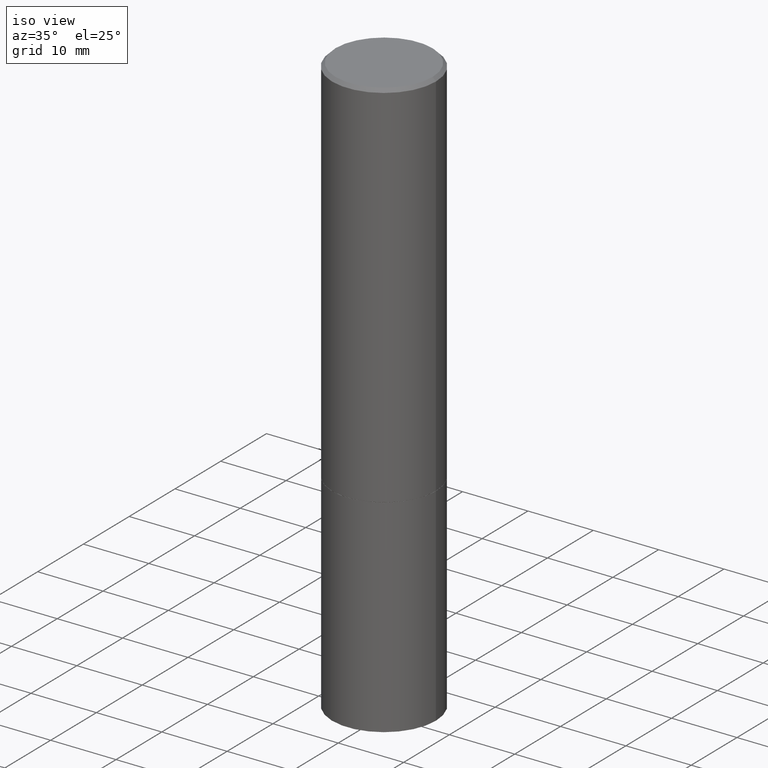
[diagram: clean part render]
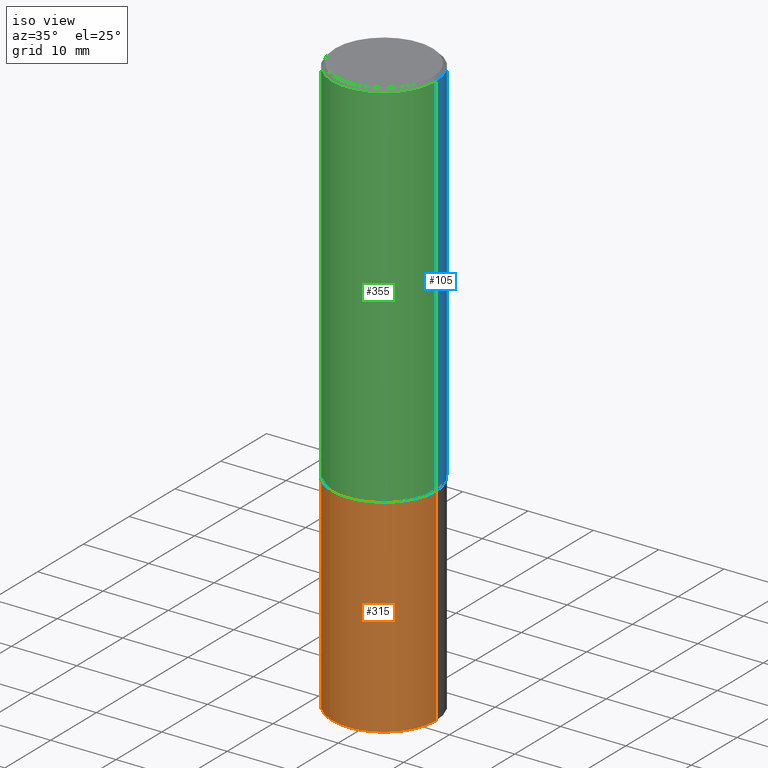
[diagram: same view with three faces highlighted in distinct colors, each labeled with its STEP entity id]
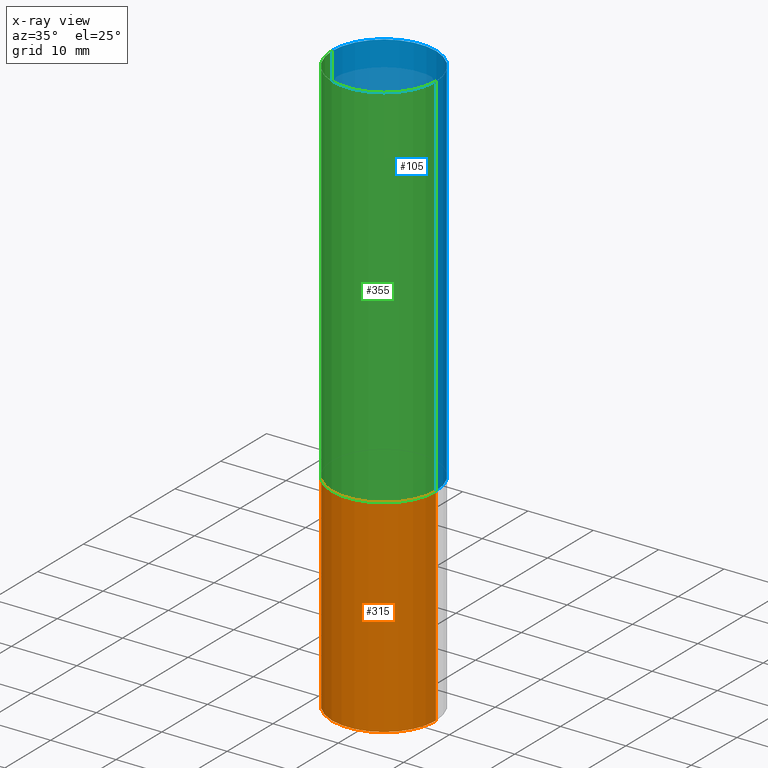
[diagram: x-ray of the same camera — body ghosted, the three highlighted faces saturated]
A machine part, iso view with three faces highlighted in distinct colors.
The next image is the same camera in x-ray (body ghosted, the three faces saturated) — at least one of them is partly hidden behind the body in this view.
Their STEP definitions:

[orange] entity #315 — the highlighted cylindrical surface (partial cylindrical patch) has radius 7.9375 mm, axis along (-0, 0, 1).
#4 = LINE ( 'NONE', #166, #90 ) ;
#12 = DIRECTION ( 'NONE',  ( 1.000000000000000000, -6.982962677686265133E-15, 0.000000000000000000 ) ) ;
#16 = LINE ( 'NONE', #81, #245 ) ;
#23 = DIRECTION ( 'NONE',  ( -2.445468806185136877E-29, 3.491481338843145188E-15, 1.000000000000000000 ) ) ;
#29 = FACE_OUTER_BOUND ( 'NONE', #168, .T. ) ;
#32 = EDGE_CURVE ( 'NONE', #298, #288, #183, .T. ) ;
#35 = CARTESIAN_POINT ( 'NONE',  ( -0.3125000000000000000, -7.817562799923728448E-15, -2.249999999999999556 ) ) ;
#38 = AXIS2_PLACEMENT_3D ( 'NONE', #346, #347, #106 ) ;
#66 = CIRCLE ( 'NONE', #38, 0.3125000000000000000 ) ;
#79 = VERTEX_POINT ( 'NONE', #211 ) ;
#81 = CARTESIAN_POINT ( 'NONE',  ( 0.3125000000000000000, -2.182175836776958347E-15, 1.523805242436230075E-29 ) ) ;
#87 = CARTESIAN_POINT ( 'NONE',  ( -0.3124999999999997224, -1.003800884917405415E-14, -3.500000000000000000 ) ) ;
#90 = VECTOR ( 'NONE', #131, 39.37007874015748143 ) ;
#95 = DIRECTION ( 'NONE',  ( -2.445468806185136597E-29, 3.491481338843145583E-15, 1.000000000000000000 ) ) ;
#106 = DIRECTION ( 'NONE',  ( 1.000000000000000000, -6.982962677686269077E-15, 0.000000000000000000 ) ) ;
#111 = EDGE_CURVE ( 'NONE', #79, #288, #16, .T. ) ;
#119 = CYLINDRICAL_SURFACE ( 'NONE', #187, 0.3125000000000000000 ) ;
#125 = ORIENTED_EDGE ( 'NONE', *, *, #163, .T. ) ;
#131 = DIRECTION ( 'NONE',  ( -2.445468806185136877E-29, 3.491481338843145188E-15, 1.000000000000000000 ) ) ;
#163 = EDGE_CURVE ( 'NONE', #320, #79, #66, .T. ) ;
#166 = CARTESIAN_POINT ( 'NONE',  ( -0.3125000000000000000, 2.220446049250313081E-15, -1.537167215704658232E-29 ) ) ;
#168 = EDGE_LOOP ( 'NONE', ( #370, #125, #235, #304 ) ) ;
#173 = CARTESIAN_POINT ( 'NONE',  ( 5.502304813916556222E-29, -7.855833012397075293E-15, -2.249999999999999556 ) ) ;
#181 = DIRECTION ( 'NONE',  ( -2.445468806185136597E-29, 3.491481338843145583E-15, 1.000000000000000000 ) ) ;
#183 = CIRCLE ( 'NONE', #344, 0.3125000000000000000 ) ;
#187 = AXIS2_PLACEMENT_3D ( 'NONE', #244, #181, #352 ) ;
#211 = CARTESIAN_POINT ( 'NONE',  ( 0.3124999999999997224, -1.436409031025461138E-14, -3.500000000000000000 ) ) ;
#212 = EDGE_CURVE ( 'NONE', #320, #298, #4, .T. ) ;
#235 = ORIENTED_EDGE ( 'NONE', *, *, #111, .T. ) ;
#244 = CARTESIAN_POINT ( 'NONE',  ( 0.000000000000000000, 0.000000000000000000, 0.000000000000000000 ) ) ;
#245 = VECTOR ( 'NONE', #23, 39.37007874015748143 ) ;
#288 = VERTEX_POINT ( 'NONE', #309 ) ;
#298 = VERTEX_POINT ( 'NONE', #35 ) ;
#304 = ORIENTED_EDGE ( 'NONE', *, *, #32, .F. ) ;
#309 = CARTESIAN_POINT ( 'NONE',  ( 0.3125000000000000000, -1.003800884917403364E-14, -2.249999999999999556 ) ) ;
#315 = ADVANCED_FACE ( 'NONE', ( #29 ), #119, .T. ) ;
#320 = VERTEX_POINT ( 'NONE', #87 ) ;
#344 = AXIS2_PLACEMENT_3D ( 'NONE', #173, #95, #12 ) ;
#346 = CARTESIAN_POINT ( 'NONE',  ( 8.559140821647976968E-29, -1.222018468595100934E-14, -3.500000000000000000 ) ) ;
#347 = DIRECTION ( 'NONE',  ( -2.445468806185136597E-29, 3.491481338843145583E-15, 1.000000000000000000 ) ) ;
#352 = DIRECTION ( 'NONE',  ( 1.000000000000000000, -6.982962677686266711E-15, 4.876176775795936353E-29 ) ) ;
#370 = ORIENTED_EDGE ( 'NONE', *, *, #212, .F. ) ;

[blue] entity #105 — the highlighted cylindrical surface (partial cylindrical patch) has radius 7.9375 mm, axis along (-0, 0, 1).
#5 = LINE ( 'NONE', #144, #272 ) ;
#24 = DIRECTION ( 'NONE',  ( -2.445468806185136597E-29, 3.491481338843145583E-15, 1.000000000000000000 ) ) ;
#37 = EDGE_CURVE ( 'NONE', #209, #114, #5, .T. ) ;
#43 = CYLINDRICAL_SURFACE ( 'NONE', #145, 0.3124999999999998890 ) ;
#58 = CIRCLE ( 'NONE', #67, 0.3125000000000000000 ) ;
#67 = AXIS2_PLACEMENT_3D ( 'NONE', #100, #102, #314 ) ;
#75 = DIRECTION ( 'NONE',  ( -2.445468806185136877E-29, 3.491481338843145188E-15, 1.000000000000000000 ) ) ;
#77 = CARTESIAN_POINT ( 'NONE',  ( 0.3124999999999998890, -2.182175836776957558E-15, 1.523805242436229235E-29 ) ) ;
#88 = ORIENTED_EDGE ( 'NONE', *, *, #37, .T. ) ;
#100 = CARTESIAN_POINT ( 'NONE',  ( 5.499859345110370619E-29, -7.852341531058232286E-15, -2.248999999999999222 ) ) ;
#102 = DIRECTION ( 'NONE',  ( -2.445468806185136597E-29, 3.491481338843145583E-15, 1.000000000000000000 ) ) ;
#104 = ORIENTED_EDGE ( 'NONE', *, *, #132, .F. ) ;
#105 = ADVANCED_FACE ( 'NONE', ( #273 ), #43, .T. ) ;
#114 = VERTEX_POINT ( 'NONE', #267 ) ;
#126 = AXIS2_PLACEMENT_3D ( 'NONE', #243, #240, #154 ) ;
#132 = EDGE_CURVE ( 'NONE', #378, #114, #325, .T. ) ;
#142 = DIRECTION ( 'NONE',  ( -2.445468806185136877E-29, 3.491481338843145188E-15, 1.000000000000000000 ) ) ;
#144 = CARTESIAN_POINT ( 'NONE',  ( -0.3124999999999998890, 2.220446049250312292E-15, -1.537167215704657391E-29 ) ) ;
#145 = AXIS2_PLACEMENT_3D ( 'NONE', #175, #24, #291 ) ;
#154 = DIRECTION ( 'NONE',  ( 1.000000000000000000, -6.982962677686265133E-15, 0.000000000000000000 ) ) ;
#159 = VECTOR ( 'NONE', #75, 39.37007874015748143 ) ;
#175 = CARTESIAN_POINT ( 'NONE',  ( 0.000000000000000000, 0.000000000000000000, 0.000000000000000000 ) ) ;
#205 = EDGE_CURVE ( 'NONE', #319, #378, #234, .T. ) ;
#209 = VERTEX_POINT ( 'NONE', #210 ) ;
#210 = CARTESIAN_POINT ( 'NONE',  ( -0.3125000000000000000, -1.740639529667232739E-15, -2.248999999999999222 ) ) ;
#234 = LINE ( 'NONE', #77, #159 ) ;
#240 = DIRECTION ( 'NONE',  ( -2.445468806185136597E-29, 3.491481338843145583E-15, 1.000000000000000000 ) ) ;
#241 = ORIENTED_EDGE ( 'NONE', *, *, #205, .F. ) ;
#243 = CARTESIAN_POINT ( 'NONE',  ( 4.890937612370289799E-31, -6.982962677686315028E-17, -0.02000000000000006981 ) ) ;
#248 = CARTESIAN_POINT ( 'NONE',  ( 0.3125000000000000000, -1.003451736783519063E-14, -2.248999999999999222 ) ) ;
#267 = CARTESIAN_POINT ( 'NONE',  ( -0.3124999999999998335, 2.112346210000093866E-15, -0.02000000000000006981 ) ) ;
#269 = CARTESIAN_POINT ( 'NONE',  ( 0.3124999999999998335, -2.213735251080465334E-15, -0.02000000000000006981 ) ) ;
#272 = VECTOR ( 'NONE', #142, 39.37007874015748143 ) ;
#273 = FACE_OUTER_BOUND ( 'NONE', #342, .T. ) ;
#291 = DIRECTION ( 'NONE',  ( 1.000000000000000000, -6.982962677686266711E-15, 4.876176775795935232E-29 ) ) ;
#297 = ORIENTED_EDGE ( 'NONE', *, *, #372, .T. ) ;
#314 = DIRECTION ( 'NONE',  ( 1.000000000000000000, -6.982962677686269077E-15, 0.000000000000000000 ) ) ;
#319 = VERTEX_POINT ( 'NONE', #248 ) ;
#325 = CIRCLE ( 'NONE', #126, 0.3124999999999998335 ) ;
#342 = EDGE_LOOP ( 'NONE', ( #297, #88, #104, #241 ) ) ;
#372 = EDGE_CURVE ( 'NONE', #319, #209, #58, .T. ) ;
#378 = VERTEX_POINT ( 'NONE', #269 ) ;

[green] entity #355 — the highlighted cylindrical surface (partial cylindrical patch) has radius 7.9375 mm, axis along (-0, 0, 1).
#5 = LINE ( 'NONE', #144, #272 ) ;
#14 = CARTESIAN_POINT ( 'NONE',  ( 5.499859345110370619E-29, -7.852341531058232286E-15, -2.248999999999999222 ) ) ;
#19 = ORIENTED_EDGE ( 'NONE', *, *, #89, .T. ) ;
#20 = DIRECTION ( 'NONE',  ( 1.000000000000000000, -6.982962677686265133E-15, 0.000000000000000000 ) ) ;
#34 = ORIENTED_EDGE ( 'NONE', *, *, #37, .F. ) ;
#37 = EDGE_CURVE ( 'NONE', #209, #114, #5, .T. ) ;
#50 = CIRCLE ( 'NONE', #208, 0.3125000000000000000 ) ;
#75 = DIRECTION ( 'NONE',  ( -2.445468806185136877E-29, 3.491481338843145188E-15, 1.000000000000000000 ) ) ;
#77 = CARTESIAN_POINT ( 'NONE',  ( 0.3124999999999998890, -2.182175836776957558E-15, 1.523805242436229235E-29 ) ) ;
#89 = EDGE_CURVE ( 'NONE', #209, #319, #50, .T. ) ;
#97 = CYLINDRICAL_SURFACE ( 'NONE', #250, 0.3124999999999998890 ) ;
#114 = VERTEX_POINT ( 'NONE', #267 ) ;
#117 = EDGE_CURVE ( 'NONE', #114, #378, #285, .T. ) ;
#139 = FACE_OUTER_BOUND ( 'NONE', #387, .T. ) ;
#142 = DIRECTION ( 'NONE',  ( -2.445468806185136877E-29, 3.491481338843145188E-15, 1.000000000000000000 ) ) ;
#144 = CARTESIAN_POINT ( 'NONE',  ( -0.3124999999999998890, 2.220446049250312292E-15, -1.537167215704657391E-29 ) ) ;
#153 = CARTESIAN_POINT ( 'NONE',  ( 4.890937612370289799E-31, -6.982962677686315028E-17, -0.02000000000000006981 ) ) ;
#156 = ORIENTED_EDGE ( 'NONE', *, *, #117, .F. ) ;
#159 = VECTOR ( 'NONE', #75, 39.37007874015748143 ) ;
#197 = CARTESIAN_POINT ( 'NONE',  ( 0.000000000000000000, 0.000000000000000000, 0.000000000000000000 ) ) ;
#205 = EDGE_CURVE ( 'NONE', #319, #378, #234, .T. ) ;
#207 = DIRECTION ( 'NONE',  ( -2.445468806185136597E-29, 3.491481338843145583E-15, 1.000000000000000000 ) ) ;
#208 = AXIS2_PLACEMENT_3D ( 'NONE', #14, #207, #349 ) ;
#209 = VERTEX_POINT ( 'NONE', #210 ) ;
#210 = CARTESIAN_POINT ( 'NONE',  ( -0.3125000000000000000, -1.740639529667232739E-15, -2.248999999999999222 ) ) ;
#230 = DIRECTION ( 'NONE',  ( -2.445468806185136597E-29, 3.491481338843145583E-15, 1.000000000000000000 ) ) ;
#234 = LINE ( 'NONE', #77, #159 ) ;
#248 = CARTESIAN_POINT ( 'NONE',  ( 0.3125000000000000000, -1.003451736783519063E-14, -2.248999999999999222 ) ) ;
#250 = AXIS2_PLACEMENT_3D ( 'NONE', #197, #230, #310 ) ;
#267 = CARTESIAN_POINT ( 'NONE',  ( -0.3124999999999998335, 2.112346210000093866E-15, -0.02000000000000006981 ) ) ;
#269 = CARTESIAN_POINT ( 'NONE',  ( 0.3124999999999998335, -2.213735251080465334E-15, -0.02000000000000006981 ) ) ;
#272 = VECTOR ( 'NONE', #142, 39.37007874015748143 ) ;
#285 = CIRCLE ( 'NONE', #376, 0.3124999999999998335 ) ;
#310 = DIRECTION ( 'NONE',  ( 1.000000000000000000, -6.982962677686266711E-15, 4.876176775795935232E-29 ) ) ;
#316 = DIRECTION ( 'NONE',  ( -2.445468806185136597E-29, 3.491481338843145583E-15, 1.000000000000000000 ) ) ;
#319 = VERTEX_POINT ( 'NONE', #248 ) ;
#324 = ORIENTED_EDGE ( 'NONE', *, *, #205, .T. ) ;
#349 = DIRECTION ( 'NONE',  ( 1.000000000000000000, -6.982962677686269077E-15, 0.000000000000000000 ) ) ;
#355 = ADVANCED_FACE ( 'NONE', ( #139 ), #97, .T. ) ;
#376 = AXIS2_PLACEMENT_3D ( 'NONE', #153, #316, #20 ) ;
#378 = VERTEX_POINT ( 'NONE', #269 ) ;
#387 = EDGE_LOOP ( 'NONE', ( #34, #19, #324, #156 ) ) ;